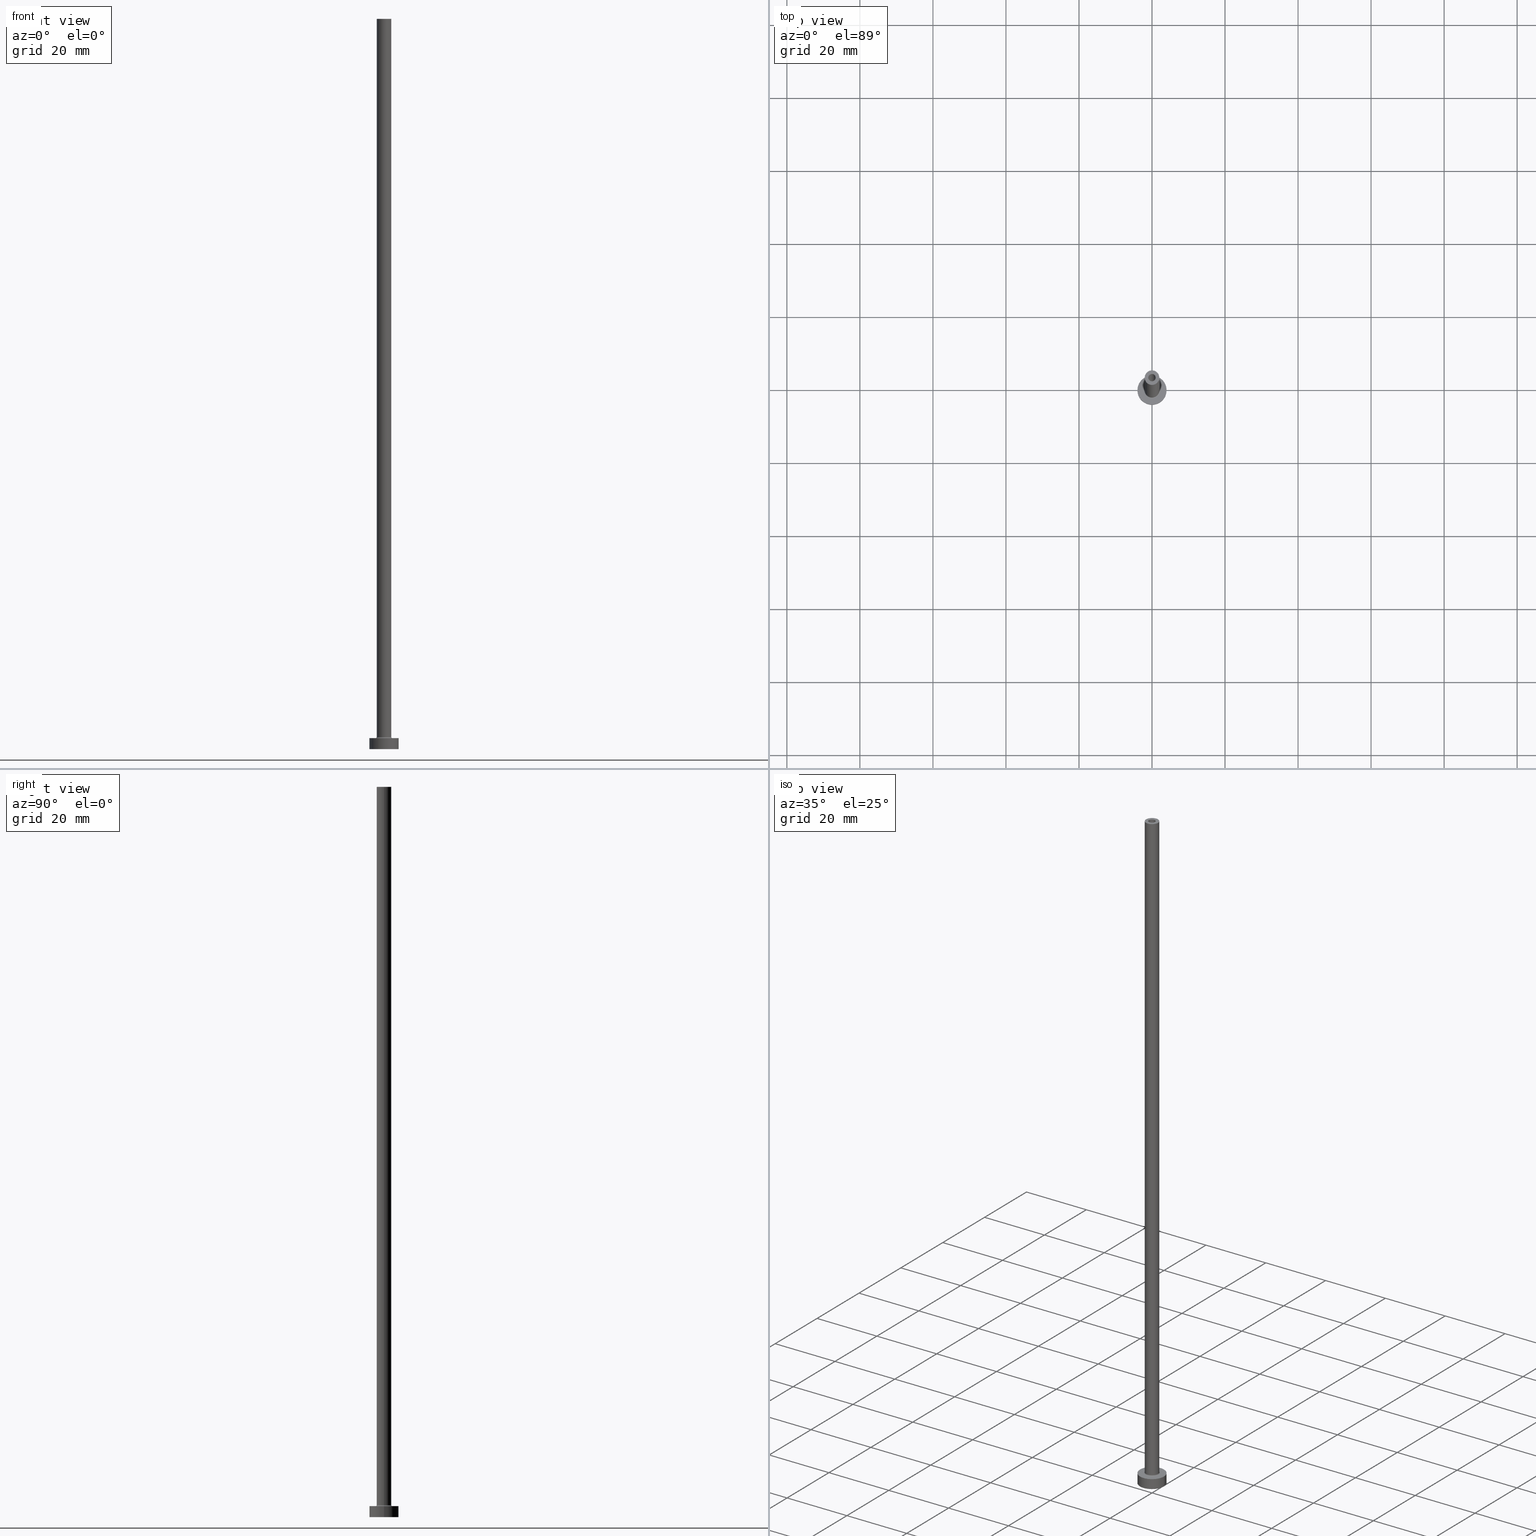
[diagram: canonical four-view strip — front | top / right | iso, engineering-drawing reading convention]
A machine part, canonical four-view strip (front | top / right | iso — engineering-drawing reading convention). The complete STEP part file that produces these views, byte-faithful:
ISO-10303-21;
HEADER;
FILE_DESCRIPTION (( 'STEP AP203' ),
    '1' );
FILE_NAME ('3804.STEP',
    '2023-02-13T18:17:37',
    ( '' ),
    ( '' ),
    'SwSTEP 2.0',
    'SolidWorks 2019',
    '' );
FILE_SCHEMA (( 'CONFIG_CONTROL_DESIGN' ));
ENDSEC;

DATA;
#1 = DIRECTION ( 'NONE',  ( 0.000000000000000000, 0.000000000000000000, -1.000000000000000000 ) ) ;
#2 = AXIS2_PLACEMENT_3D ( 'NONE', #306, #198, #444 ) ;
#3 = VECTOR ( 'NONE', #148, 1000.000000000000000 ) ;
#4 = DIRECTION ( 'NONE',  ( 1.000000000000000000, 0.000000000000000000, 0.000000000000000000 ) ) ;
#5 = ORIENTED_EDGE ( 'NONE', *, *, #327, .T. ) ;
#6 = DIRECTION ( 'NONE',  ( -0.000000000000000000, -0.000000000000000000, -1.000000000000000000 ) ) ;
#7 = ADVANCED_FACE ( 'NONE', ( #129 ), #270, .F. ) ;
#8 = DIRECTION ( 'NONE',  ( 0.000000000000000000, 0.000000000000000000, 1.000000000000000000 ) ) ;
#9 = ORIENTED_EDGE ( 'NONE', *, *, #277, .F. ) ;
#10 = CC_DESIGN_APPROVAL ( #256, ( #58 ) ) ;
#11 = ORIENTED_EDGE ( 'NONE', *, *, #242, .T. ) ;
#12 = AXIS2_PLACEMENT_3D ( 'NONE', #363, #8, #437 ) ;
#13 = VERTEX_POINT ( 'NONE', #123 ) ;
#14 = VERTEX_POINT ( 'NONE', #365 ) ;
#15 = ORIENTED_EDGE ( 'NONE', *, *, #335, .T. ) ;
#16 = TOROIDAL_SURFACE ( 'NONE', #66, 2.299999999999999822, 0.2999999999999999889 ) ;
#17 = EDGE_CURVE ( 'NONE', #162, #216, #131, .T. ) ;
#18 = ORIENTED_EDGE ( 'NONE', *, *, #17, .T. ) ;
#19 = DIRECTION ( 'NONE',  ( 0.000000000000000000, 0.000000000000000000, 1.000000000000000000 ) ) ;
#20 = PERSON_AND_ORGANIZATION ( #426, #276 ) ;
#21 = CARTESIAN_POINT ( 'NONE',  ( 0.000000000000000000, 0.000000000000000000, 3.000000000000000000 ) ) ;
#22 = CARTESIAN_POINT ( 'NONE',  ( 0.000000000000000000, 0.000000000000000000, 200.0000000000000000 ) ) ;
#23 = DATE_TIME_ROLE ( 'creation_date' ) ;
#24 = ADVANCED_FACE ( 'NONE', ( #436 ), #346, .T. ) ;
#25 = AXIS2_PLACEMENT_3D ( 'NONE', #238, #373, #170 ) ;
#26 = CALENDAR_DATE ( 2023, 13, 2 ) ;
#27 = DIRECTION ( 'NONE',  ( 1.000000000000000000, 0.000000000000000000, -0.000000000000000000 ) ) ;
#28 = ADVANCED_FACE ( 'NONE', ( #175 ), #332, .T. ) ;
#29 = PLANE ( 'NONE',  #266 ) ;
#30 = CIRCLE ( 'NONE', #345, 1.149999999999999911 ) ;
#31 = CARTESIAN_POINT ( 'NONE',  ( 2.299999999999999822, 0.000000000000000000, 2.999999999999998668 ) ) ;
#32 = EDGE_LOOP ( 'NONE', ( #368, #322 ) ) ;
#33 = DIRECTION ( 'NONE',  ( 0.000000000000000000, 0.000000000000000000, 1.000000000000000000 ) ) ;
#34 = CARTESIAN_POINT ( 'NONE',  ( 0.000000000000000000, 0.000000000000000000, 3.000000000000000000 ) ) ;
#35 = VERTEX_POINT ( 'NONE', #119 ) ;
#36 = CARTESIAN_POINT ( 'NONE',  ( 0.000000000000000000, 0.000000000000000000, 168.2526911934581335 ) ) ;
#37 = APPROVAL ( #369, 'NEUR�EN�' ) ;
#38 = AXIS2_PLACEMENT_3D ( 'NONE', #387, #422, #383 ) ;
#39 = DIRECTION ( 'NONE',  ( 1.000000000000000000, 0.000000000000000000, 0.000000000000000000 ) ) ;
#40 = DIRECTION ( 'NONE',  ( -1.000000000000000000, 0.000000000000000000, 0.000000000000000000 ) ) ;
#41 = DIRECTION ( 'NONE',  ( 1.000000000000000000, 0.000000000000000000, 0.000000000000000000 ) ) ;
#42 = CARTESIAN_POINT ( 'NONE',  ( 0.000000000000000000, 0.000000000000000000, 200.0000000000000000 ) ) ;
#43 = EDGE_CURVE ( 'NONE', #265, #381, #122, .T. ) ;
#44 = CARTESIAN_POINT ( 'NONE',  ( 0.000000000000000000, 0.000000000000000000, 200.0000000000000000 ) ) ;
#45 =( LENGTH_UNIT ( ) NAMED_UNIT ( * ) SI_UNIT ( .MILLI., .METRE. ) );
#46 = CIRCLE ( 'NONE', #417, 1.149999999999999911 ) ;
#47 = APPROVAL_PERSON_ORGANIZATION ( #164, #37, #303 ) ;
#48 = EDGE_LOOP ( 'NONE', ( #185, #231, #405, #319 ) ) ;
#49 = DIRECTION ( 'NONE',  ( 0.000000000000000000, 0.000000000000000000, 1.000000000000000000 ) ) ;
#50 = CIRCLE ( 'NONE', #217, 2.299999999999999822 ) ;
#51 =( NAMED_UNIT ( * ) SI_UNIT ( $, .STERADIAN. ) SOLID_ANGLE_UNIT ( ) );
#52 = CARTESIAN_POINT ( 'NONE',  ( 2.000000000000000000, 2.449293598294706414E-16, 200.0000000000000000 ) ) ;
#53 = EDGE_CURVE ( 'NONE', #13, #350, #262, .T. ) ;
#54 = DIRECTION ( 'NONE',  ( 1.000000000000000000, 0.000000000000000000, 0.000000000000000000 ) ) ;
#55 = APPROVAL_DATE_TIME ( #97, #251 ) ;
#56 = LINE ( 'NONE', #52, #309 ) ;
#57 = AXIS2_PLACEMENT_3D ( 'NONE', #313, #458, #138 ) ;
#58 = SECURITY_CLASSIFICATION ( '', '', #410 ) ;
#59 = DIRECTION ( 'NONE',  ( -0.000000000000000000, -0.000000000000000000, -1.000000000000000000 ) ) ;
#60 = DIRECTION ( 'NONE',  ( -0.000000000000000000, -0.000000000000000000, -1.000000000000000000 ) ) ;
#61 = EDGE_CURVE ( 'NONE', #457, #353, #95, .T. ) ;
#62 = CARTESIAN_POINT ( 'NONE',  ( 0.000000000000000000, 0.000000000000000000, 165.0000000000000000 ) ) ;
#63 = FACE_OUTER_BOUND ( 'NONE', #406, .T. ) ;
#64 = CARTESIAN_POINT ( 'NONE',  ( -1.149999999999999911, 0.000000000000000000, 165.0000000000000000 ) ) ;
#65 = CARTESIAN_POINT ( 'NONE',  ( 0.000000000000000000, 0.000000000000000000, 0.000000000000000000 ) ) ;
#66 = AXIS2_PLACEMENT_3D ( 'NONE', #285, #409, #54 ) ;
#67 = APPROVAL_PERSON_ORGANIZATION ( #88, #256, #453 ) ;
#68 = DIRECTION ( 'NONE',  ( 1.000000000000000000, 0.000000000000000000, 0.000000000000000000 ) ) ;
#69 = EDGE_CURVE ( 'NONE', #35, #160, #323, .T. ) ;
#70 = ORIENTED_EDGE ( 'NONE', *, *, #195, .F. ) ;
#71 = AXIS2_PLACEMENT_3D ( 'NONE', #324, #189, #4 ) ;
#72 = AXIS2_PLACEMENT_3D ( 'NONE', #103, #33, #320 ) ;
#73 = CC_DESIGN_APPROVAL ( #251, ( #429 ) ) ;
#74 = ORIENTED_EDGE ( 'NONE', *, *, #412, .F. ) ;
#75 = ORIENTED_EDGE ( 'NONE', *, *, #130, .T. ) ;
#76 = CALENDAR_DATE ( 2023, 13, 2 ) ;
#77 = VERTEX_POINT ( 'NONE', #298 ) ;
#78 = AXIS2_PLACEMENT_3D ( 'NONE', #44, #461, #110 ) ;
#79 = ORIENTED_EDGE ( 'NONE', *, *, #69, .F. ) ;
#80 = PERSON_AND_ORGANIZATION ( #426, #276 ) ;
#81 = ORIENTED_EDGE ( 'NONE', *, *, #106, .T. ) ;
#82 = EDGE_CURVE ( 'NONE', #160, #35, #244, .T. ) ;
#83 = CARTESIAN_POINT ( 'NONE',  ( 2.000000000000000000, 2.449293598294706414E-16, 200.0000000000000000 ) ) ;
#84 = DIRECTION ( 'NONE',  ( 1.000000000000000000, 0.000000000000000000, 0.000000000000000000 ) ) ;
#85 = CLOSED_SHELL ( 'NONE', ( #7, #308, #236, #28, #118, #24, #321, #286, #268, #401, #202, #207, #347, #90 ) ) ;
#86 = EDGE_LOOP ( 'NONE', ( #121, #201, #451, #5 ) ) ;
#87 = DIRECTION ( 'NONE',  ( 1.000000000000000000, 0.000000000000000000, -0.000000000000000000 ) ) ;
#88 = PERSON_AND_ORGANIZATION ( #426, #276 ) ;
#89 = CIRCLE ( 'NONE', #377, 1.000000000000000000 ) ;
#90 = ADVANCED_FACE ( 'NONE', ( #424 ), #92, .F. ) ;
#91 = DIRECTION ( 'NONE',  ( -0.000000000000000000, -0.000000000000000000, -1.000000000000000000 ) ) ;
#92 = CYLINDRICAL_SURFACE ( 'NONE', #113, 1.000000000000000000 ) ;
#93 = PERSON_AND_ORGANIZATION_ROLE ( 'creator' ) ;
#94 = DATE_AND_TIME ( #26, #108 ) ;
#95 = LINE ( 'NONE', #261, #399 ) ;
#96 = ORIENTED_EDGE ( 'NONE', *, *, #327, .F. ) ;
#97 = DATE_AND_TIME ( #307, #98 ) ;
#98 = LOCAL_TIME ( 19, 17, 37.00000000000000000, #414 ) ;
#99 = DIRECTION ( 'NONE',  ( 0.000000000000000000, 0.000000000000000000, 1.000000000000000000 ) ) ;
#100 = PRODUCT_DEFINITION ( 'NEZN�M�', '', #429, #311 ) ;
#101 = ORIENTED_EDGE ( 'NONE', *, *, #43, .F. ) ;
#102 = EDGE_LOOP ( 'NONE', ( #11, #141 ) ) ;
#103 = CARTESIAN_POINT ( 'NONE',  ( 0.000000000000000000, 0.000000000000000000, 0.000000000000000000 ) ) ;
#104 = DIRECTION ( 'NONE',  ( 1.000000000000000000, 0.000000000000000000, 0.000000000000000000 ) ) ;
#105 = DIRECTION ( 'NONE',  ( -0.000000000000000000, -0.000000000000000000, -1.000000000000000000 ) ) ;
#106 = EDGE_CURVE ( 'NONE', #216, #162, #315, .T. ) ;
#107 = CIRCLE ( 'NONE', #38, 4.000000000000000000 ) ;
#108 = LOCAL_TIME ( 19, 17, 37.00000000000000000, #172 ) ;
#109 = MANIFOLD_SOLID_BREP ( 'Odebrat vysunut�m4', #85 ) ;
#110 = DIRECTION ( 'NONE',  ( -1.000000000000000000, 0.000000000000000000, 0.000000000000000000 ) ) ;
#111 = DIRECTION ( 'NONE',  ( -1.000000000000000000, 0.000000000000000000, 0.000000000000000000 ) ) ;
#112 = CARTESIAN_POINT ( 'NONE',  ( 0.000000000000000000, 0.000000000000000000, 200.0000000000000000 ) ) ;
#113 = AXIS2_PLACEMENT_3D ( 'NONE', #112, #1, #360 ) ;
#114 = ORIENTED_EDGE ( 'NONE', *, *, #293, .F. ) ;
#115 = ORIENTED_EDGE ( 'NONE', *, *, #213, .T. ) ;
#116 = DIRECTION ( 'NONE',  ( 0.000000000000000000, 0.000000000000000000, 1.000000000000000000 ) ) ;
#117 = AXIS2_PLACEMENT_3D ( 'NONE', #386, #151, #295 ) ;
#118 = ADVANCED_FACE ( 'NONE', ( #318 ), #184, .T. ) ;
#119 = CARTESIAN_POINT ( 'NONE',  ( -2.000000000000000000, 0.000000000000000000, 3.299999999999997158 ) ) ;
#120 = ORIENTED_EDGE ( 'NONE', *, *, #183, .T. ) ;
#121 = ORIENTED_EDGE ( 'NONE', *, *, #367, .F. ) ;
#122 = CIRCLE ( 'NONE', #12, 1.000000000000000000 ) ;
#123 = CARTESIAN_POINT ( 'NONE',  ( 1.149999999999999911, 1.408343819019456028E-16, 165.0000000000000000 ) ) ;
#124 = PRODUCT_DEFINITION_SHAPE ( 'NONE', 'NONE',  #100 ) ;
#125 = APPLICATION_PROTOCOL_DEFINITION ( 'international standard', 'config_control_design', 1994, #423 ) ;
#126 = EDGE_CURVE ( 'NONE', #241, #179, #253, .T. ) ;
#127 = AXIS2_PLACEMENT_3D ( 'NONE', #352, #358, #394 ) ;
#128 = DATE_TIME_ROLE ( 'classification_date' ) ;
#129 = FACE_OUTER_BOUND ( 'NONE', #425, .T. ) ;
#130 = EDGE_CURVE ( 'NONE', #353, #350, #46, .T. ) ;
#131 = CIRCLE ( 'NONE', #281, 2.000000000000000000 ) ;
#132 = CARTESIAN_POINT ( 'NONE',  ( 2.299999999999999822, 0.000000000000000000, 3.299999999999997158 ) ) ;
#133 = PERSON_AND_ORGANIZATION ( #426, #276 ) ;
#134 = DATE_AND_TIME ( #375, #435 ) ;
#135 = ORIENTED_EDGE ( 'NONE', *, *, #412, .T. ) ;
#136 = FACE_OUTER_BOUND ( 'NONE', #211, .T. ) ;
#137 = DIRECTION ( 'NONE',  ( -0.000000000000000000, -0.000000000000000000, -1.000000000000000000 ) ) ;
#138 = DIRECTION ( 'NONE',  ( 1.000000000000000000, 0.000000000000000000, 0.000000000000000000 ) ) ;
#139 = CC_DESIGN_PERSON_AND_ORGANIZATION_ASSIGNMENT ( #239, #167, ( #429 ) ) ;
#140 = DIRECTION ( 'NONE',  ( 0.000000000000000000, 0.000000000000000000, -1.000000000000000000 ) ) ;
#141 = ORIENTED_EDGE ( 'NONE', *, *, #304, .T. ) ;
#142 = CIRCLE ( 'NONE', #330, 2.299999999999999822 ) ;
#143 = DIRECTION ( 'NONE',  ( 0.000000000000000000, 0.000000000000000000, 1.000000000000000000 ) ) ;
#144 = PLANE ( 'NONE',  #188 ) ;
#145 = DIRECTION ( 'NONE',  ( 1.000000000000000000, 0.000000000000000000, 0.000000000000000000 ) ) ;
#146 = CARTESIAN_POINT ( 'NONE',  ( 2.000000000000000000, 2.449293598294706414E-16, 3.299999999999997158 ) ) ;
#147 = EDGE_CURVE ( 'NONE', #381, #265, #305, .T. ) ;
#148 = DIRECTION ( 'NONE',  ( -0.000000000000000000, -0.000000000000000000, -1.000000000000000000 ) ) ;
#149 = ORIENTED_EDGE ( 'NONE', *, *, #361, .F. ) ;
#150 = CIRCLE ( 'NONE', #301, 1.000000000000000000 ) ;
#151 = DIRECTION ( 'NONE',  ( 0.000000000000000000, 0.000000000000000000, 1.000000000000000000 ) ) ;
#152 = CARTESIAN_POINT ( 'NONE',  ( 0.000000000000000000, 0.000000000000000000, 165.0000000000000000 ) ) ;
#153 = FACE_OUTER_BOUND ( 'NONE', #271, .T. ) ;
#154 = DIRECTION ( 'NONE',  ( 0.000000000000000000, 0.000000000000000000, 1.000000000000000000 ) ) ;
#155 = DIRECTION ( 'NONE',  ( 1.000000000000000000, 0.000000000000000000, 0.000000000000000000 ) ) ;
#156 = VECTOR ( 'NONE', #59, 1000.000000000000000 ) ;
#157 = LOCAL_TIME ( 19, 17, 37.00000000000000000, #203 ) ;
#158 = VERTEX_POINT ( 'NONE', #31 ) ;
#159 = PRODUCT ( '3804', '3804', '', ( #333 ) ) ;
#160 = VERTEX_POINT ( 'NONE', #146 ) ;
#161 = PRODUCT_RELATED_PRODUCT_CATEGORY ( 'detail', '', ( #159 ) ) ;
#162 = VERTEX_POINT ( 'NONE', #83 ) ;
#163 = ORIENTED_EDGE ( 'NONE', *, *, #147, .T. ) ;
#164 = PERSON_AND_ORGANIZATION ( #426, #276 ) ;
#165 = CARTESIAN_POINT ( 'NONE',  ( -4.000000000000000000, 0.000000000000000000, 3.000000000000000000 ) ) ;
#166 = VERTEX_POINT ( 'NONE', #371 ) ;
#167 = PERSON_AND_ORGANIZATION_ROLE ( 'design_supplier' ) ;
#168 = CARTESIAN_POINT ( 'NONE',  ( 0.000000000000000000, 0.000000000000000000, 0.000000000000000000 ) ) ;
#169 = DIRECTION ( 'NONE',  ( 0.000000000000000000, 0.000000000000000000, 1.000000000000000000 ) ) ;
#170 = DIRECTION ( 'NONE',  ( -1.000000000000000000, 0.000000000000000000, 0.000000000000000000 ) ) ;
#171 = EDGE_LOOP ( 'NONE', ( #177, #233 ) ) ;
#172 = COORDINATED_UNIVERSAL_TIME_OFFSET ( 1, 0, .AHEAD. ) ;
#173 = APPROVAL_STATUS ( 'not_yet_approved' ) ;
#174 = DIRECTION ( 'NONE',  ( 1.000000000000000000, 0.000000000000000000, -0.000000000000000000 ) ) ;
#175 = FACE_OUTER_BOUND ( 'NONE', #255, .T. ) ;
#176 = LINE ( 'NONE', #376, #156 ) ;
#177 = ORIENTED_EDGE ( 'NONE', *, *, #226, .T. ) ;
#178 = CARTESIAN_POINT ( 'NONE',  ( -1.000000000000000000, 0.000000000000000000, 200.0000000000000000 ) ) ;
#179 = VERTEX_POINT ( 'NONE', #165 ) ;
#180 = CARTESIAN_POINT ( 'NONE',  ( 4.000000000000000000, 4.898587196589412829E-16, 0.000000000000000000 ) ) ;
#181 =( GEOMETRIC_REPRESENTATION_CONTEXT ( 3 ) GLOBAL_UNCERTAINTY_ASSIGNED_CONTEXT ( ( #287 ) ) GLOBAL_UNIT_ASSIGNED_CONTEXT ( ( #45, #415, #51 ) ) REPRESENTATION_CONTEXT ( 'NONE', 'WORKASPACE' ) );
#182 = CARTESIAN_POINT ( 'NONE',  ( 0.000000000000000000, 0.000000000000000000, 3.000000000000000000 ) ) ;
#183 = EDGE_CURVE ( 'NONE', #35, #404, #408, .T. ) ;
#184 = CYLINDRICAL_SURFACE ( 'NONE', #325, 4.000000000000000000 ) ;
#185 = ORIENTED_EDGE ( 'NONE', *, *, #183, .F. ) ;
#186 = DIRECTION ( 'NONE',  ( 0.000000000000000000, 0.000000000000000000, -1.000000000000000000 ) ) ;
#187 = DIRECTION ( 'NONE',  ( 0.000000000000000000, 0.000000000000000000, -1.000000000000000000 ) ) ;
#188 = AXIS2_PLACEMENT_3D ( 'NONE', #182, #143, #174 ) ;
#189 = DIRECTION ( 'NONE',  ( 0.000000000000000000, 0.000000000000000000, 1.000000000000000000 ) ) ;
#190 = CC_DESIGN_DATE_AND_TIME_ASSIGNMENT ( #94, #128, ( #58 ) ) ;
#191 = ORIENTED_EDGE ( 'NONE', *, *, #213, .F. ) ;
#192 = EDGE_LOOP ( 'NONE', ( #9, #289, #380, #390 ) ) ;
#193 = AXIS2_PLACEMENT_3D ( 'NONE', #21, #91, #240 ) ;
#194 = DIRECTION ( 'NONE',  ( 1.000000000000000000, 0.000000000000000000, 0.000000000000000000 ) ) ;
#195 = EDGE_CURVE ( 'NONE', #216, #35, #328, .T. ) ;
#196 = ORIENTED_EDGE ( 'NONE', *, *, #53, .F. ) ;
#197 = ORIENTED_EDGE ( 'NONE', *, *, #69, .T. ) ;
#198 = DIRECTION ( 'NONE',  ( 1.224646799147353207E-16, 1.000000000000000000, -0.000000000000000000 ) ) ;
#199 = DIRECTION ( 'NONE',  ( -1.000000000000000000, 0.000000000000000000, 0.000000000000000000 ) ) ;
#200 = VECTOR ( 'NONE', #140, 1000.000000000000000 ) ;
#201 = ORIENTED_EDGE ( 'NONE', *, *, #226, .F. ) ;
#202 = ADVANCED_FACE ( 'NONE', ( #411 ), #16, .F. ) ;
#203 = COORDINATED_UNIVERSAL_TIME_OFFSET ( 1, 0, .AHEAD. ) ;
#204 = COORDINATED_UNIVERSAL_TIME_OFFSET ( 1, 0, .AHEAD. ) ;
#205 = PERSON_AND_ORGANIZATION ( #426, #276 ) ;
#206 = AXIS2_PLACEMENT_3D ( 'NONE', #42, #6, #40 ) ;
#207 = ADVANCED_FACE ( 'NONE', ( #446 ), #378, .F. ) ;
#208 = AXIS2_PLACEMENT_3D ( 'NONE', #65, #214, #284 ) ;
#209 = AXIS2_PLACEMENT_3D ( 'NONE', #132, #278, #294 ) ;
#210 = PLANE ( 'NONE',  #317 ) ;
#211 = EDGE_LOOP ( 'NONE', ( #81, #18 ) ) ;
#212 = EDGE_LOOP ( 'NONE', ( #263, #312, #15, #302 ) ) ;
#213 = EDGE_CURVE ( 'NONE', #162, #160, #56, .T. ) ;
#214 = DIRECTION ( 'NONE',  ( 0.000000000000000000, 0.000000000000000000, 1.000000000000000000 ) ) ;
#215 = DIRECTION ( 'NONE',  ( -0.000000000000000000, -0.000000000000000000, -1.000000000000000000 ) ) ;
#216 = VERTEX_POINT ( 'NONE', #259 ) ;
#217 = AXIS2_PLACEMENT_3D ( 'NONE', #34, #362, #427 ) ;
#218 = DIRECTION ( 'NONE',  ( 1.000000000000000000, 0.000000000000000000, 0.000000000000000000 ) ) ;
#219 = ORIENTED_EDGE ( 'NONE', *, *, #421, .F. ) ;
#220 = CARTESIAN_POINT ( 'NONE',  ( 0.000000000000000000, 0.000000000000000000, 3.000000000000000000 ) ) ;
#221 = CC_DESIGN_PERSON_AND_ORGANIZATION_ASSIGNMENT ( #80, #336, ( #159 ) ) ;
#222 = EDGE_LOOP ( 'NONE', ( #96, #114 ) ) ;
#223 = AXIS2_PLACEMENT_3D ( 'NONE', #250, #154, #41 ) ;
#224 = EDGE_LOOP ( 'NONE', ( #196, #419, #356, #75 ) ) ;
#225 = DIRECTION ( 'NONE',  ( 0.000000000000000000, 0.000000000000000000, 1.000000000000000000 ) ) ;
#226 = EDGE_CURVE ( 'NONE', #179, #241, #107, .T. ) ;
#227 = AXIS2_PLACEMENT_3D ( 'NONE', #292, #116, #155 ) ;
#228 = DIRECTION ( 'NONE',  ( 0.000000000000000000, 0.000000000000000000, -1.000000000000000000 ) ) ;
#229 = APPROVAL_DATE_TIME ( #264, #37 ) ;
#230 = CC_DESIGN_SECURITY_CLASSIFICATION ( #58, ( #429 ) ) ;
#231 = ORIENTED_EDGE ( 'NONE', *, *, #82, .F. ) ;
#232 = APPLICATION_PROTOCOL_DEFINITION ( 'international standard', 'config_control_design', 1994, #448 ) ;
#233 = ORIENTED_EDGE ( 'NONE', *, *, #126, .T. ) ;
#234 = ORIENTED_EDGE ( 'NONE', *, *, #438, .F. ) ;
#235 = CARTESIAN_POINT ( 'NONE',  ( 0.000000000000000000, 0.000000000000000000, 3.000000000000000000 ) ) ;
#236 = ADVANCED_FACE ( 'NONE', ( #63 ), #459, .F. ) ;
#237 = ORIENTED_EDGE ( 'NONE', *, *, #367, .T. ) ;
#238 = CARTESIAN_POINT ( 'NONE',  ( 0.000000000000000000, 0.000000000000000000, 168.2526911934581335 ) ) ;
#239 = PERSON_AND_ORGANIZATION ( #426, #276 ) ;
#240 = DIRECTION ( 'NONE',  ( -1.000000000000000000, 0.000000000000000000, 0.000000000000000000 ) ) ;
#241 = VERTEX_POINT ( 'NONE', #243 ) ;
#242 = EDGE_CURVE ( 'NONE', #158, #404, #142, .T. ) ;
#243 = CARTESIAN_POINT ( 'NONE',  ( 4.000000000000000000, 4.898587196589412829E-16, 3.000000000000000000 ) ) ;
#244 = CIRCLE ( 'NONE', #440, 2.000000000000000000 ) ;
#245 = ORIENTED_EDGE ( 'NONE', *, *, #293, .T. ) ;
#246 = FACE_BOUND ( 'NONE', #282, .T. ) ;
#247 = EDGE_LOOP ( 'NONE', ( #370, #237, #245, #234 ) ) ;
#248 = APPROVAL_PERSON_ORGANIZATION ( #274, #251, #379 ) ;
#249 = FACE_BOUND ( 'NONE', #433, .T. ) ;
#250 = CARTESIAN_POINT ( 'NONE',  ( 0.000000000000000000, 0.000000000000000000, 200.0000000000000000 ) ) ;
#251 = APPROVAL ( #344, 'NEUR�EN�' ) ;
#252 = CARTESIAN_POINT ( 'NONE',  ( 1.149999999999999911, 1.408343819019456028E-16, 0.000000000000000000 ) ) ;
#253 = CIRCLE ( 'NONE', #117, 4.000000000000000000 ) ;
#254 = DIRECTION ( 'NONE',  ( 0.000000000000000000, 0.000000000000000000, -1.000000000000000000 ) ) ;
#255 = EDGE_LOOP ( 'NONE', ( #403, #115, #398, #70 ) ) ;
#256 = APPROVAL ( #173, 'NEUR�EN�' ) ;
#257 = CYLINDRICAL_SURFACE ( 'NONE', #428, 1.149999999999999911 ) ;
#258 = PLANE ( 'NONE',  #72 ) ;
#259 = CARTESIAN_POINT ( 'NONE',  ( -2.000000000000000000, 0.000000000000000000, 200.0000000000000000 ) ) ;
#260 = AXIS2_PLACEMENT_3D ( 'NONE', #279, #267, #272 ) ;
#261 = CARTESIAN_POINT ( 'NONE',  ( -1.149999999999999911, 0.000000000000000000, 168.2526911934581335 ) ) ;
#262 = LINE ( 'NONE', #357, #374 ) ;
#263 = ORIENTED_EDGE ( 'NONE', *, *, #299, .T. ) ;
#264 = DATE_AND_TIME ( #76, #283 ) ;
#265 = VERTEX_POINT ( 'NONE', #355 ) ;
#266 = AXIS2_PLACEMENT_3D ( 'NONE', #62, #280, #27 ) ;
#267 = DIRECTION ( 'NONE',  ( 0.000000000000000000, 0.000000000000000000, 1.000000000000000000 ) ) ;
#268 = ADVANCED_FACE ( 'NONE', ( #153 ), #395, .T. ) ;
#269 = CARTESIAN_POINT ( 'NONE',  ( 0.000000000000000000, 0.000000000000000000, 200.0000000000000000 ) ) ;
#270 = CYLINDRICAL_SURFACE ( 'NONE', #291, 1.000000000000000000 ) ;
#271 = EDGE_LOOP ( 'NONE', ( #191, #343, #393, #197 ) ) ;
#272 = DIRECTION ( 'NONE',  ( 1.000000000000000000, 0.000000000000000000, 0.000000000000000000 ) ) ;
#273 = CARTESIAN_POINT ( 'NONE',  ( -2.000000000000000000, 0.000000000000000000, 200.0000000000000000 ) ) ;
#274 = PERSON_AND_ORGANIZATION ( #426, #276 ) ;
#275 = VECTOR ( 'NONE', #254, 1000.000000000000000 ) ;
#276 = ORGANIZATION ( 'NEUR�EN�', 'NEUR�EN�', '' ) ;
#277 = EDGE_CURVE ( 'NONE', #14, #381, #326, .T. ) ;
#278 = DIRECTION ( 'NONE',  ( 0.000000000000000000, -1.000000000000000000, 0.000000000000000000 ) ) ;
#279 = CARTESIAN_POINT ( 'NONE',  ( 0.000000000000000000, 0.000000000000000000, 3.299999999999997158 ) ) ;
#280 = DIRECTION ( 'NONE',  ( 0.000000000000000000, 0.000000000000000000, 1.000000000000000000 ) ) ;
#281 = AXIS2_PLACEMENT_3D ( 'NONE', #334, #49, #288 ) ;
#282 = EDGE_LOOP ( 'NONE', ( #74, #329 ) ) ;
#283 = LOCAL_TIME ( 19, 17, 37.00000000000000000, #442 ) ;
#284 = DIRECTION ( 'NONE',  ( 1.000000000000000000, 0.000000000000000000, 0.000000000000000000 ) ) ;
#285 = CARTESIAN_POINT ( 'NONE',  ( 0.000000000000000000, 0.000000000000000000, 3.299999999999997158 ) ) ;
#286 = ADVANCED_FACE ( 'NONE', ( #296, #431 ), #258, .F. ) ;
#287 = UNCERTAINTY_MEASURE_WITH_UNIT (LENGTH_MEASURE( 1.000000000000000082E-05 ), #45, 'distance_accuracy_value', 'NONE');
#288 = DIRECTION ( 'NONE',  ( 1.000000000000000000, 0.000000000000000000, 0.000000000000000000 ) ) ;
#289 = ORIENTED_EDGE ( 'NONE', *, *, #384, .T. ) ;
#290 = EDGE_LOOP ( 'NONE', ( #402, #351 ) ) ;
#291 = AXIS2_PLACEMENT_3D ( 'NONE', #269, #228, #199 ) ;
#292 = CARTESIAN_POINT ( 'NONE',  ( 0.000000000000000000, 0.000000000000000000, 0.000000000000000000 ) ) ;
#293 = EDGE_CURVE ( 'NONE', #455, #77, #434, .T. ) ;
#294 = DIRECTION ( 'NONE',  ( 0.000000000000000000, 0.000000000000000000, -1.000000000000000000 ) ) ;
#295 = DIRECTION ( 'NONE',  ( 1.000000000000000000, 0.000000000000000000, 0.000000000000000000 ) ) ;
#296 = FACE_BOUND ( 'NONE', #290, .T. ) ;
#297 = CARTESIAN_POINT ( 'NONE',  ( 0.000000000000000000, 0.000000000000000000, 0.000000000000000000 ) ) ;
#298 = CARTESIAN_POINT ( 'NONE',  ( -4.000000000000000000, 0.000000000000000000, 0.000000000000000000 ) ) ;
#299 = EDGE_CURVE ( 'NONE', #457, #13, #337, .T. ) ;
#300 = DIRECTION ( 'NONE',  ( 1.000000000000000000, 0.000000000000000000, 0.000000000000000000 ) ) ;
#301 = AXIS2_PLACEMENT_3D ( 'NONE', #416, #99, #145 ) ;
#302 = ORIENTED_EDGE ( 'NONE', *, *, #61, .F. ) ;
#303 = APPROVAL_ROLE ( '' ) ;
#304 = EDGE_CURVE ( 'NONE', #404, #158, #50, .T. ) ;
#305 = CIRCLE ( 'NONE', #127, 1.000000000000000000 ) ;
#306 = CARTESIAN_POINT ( 'NONE',  ( -2.299999999999999822, 2.816687638038912056E-16, 3.299999999999997158 ) ) ;
#307 = CALENDAR_DATE ( 2023, 13, 2 ) ;
#308 = ADVANCED_FACE ( 'NONE', ( #354 ), #257, .F. ) ;
#309 = VECTOR ( 'NONE', #460, 1000.000000000000000 ) ;
#310 = CC_DESIGN_APPROVAL ( #37, ( #100 ) ) ;
#311 = DESIGN_CONTEXT ( 'detailed design', #448, 'design' ) ;
#312 = ORIENTED_EDGE ( 'NONE', *, *, #53, .T. ) ;
#313 = CARTESIAN_POINT ( 'NONE',  ( 0.000000000000000000, 0.000000000000000000, 165.0000000000000000 ) ) ;
#314 = CARTESIAN_POINT ( 'NONE',  ( 1.000000000000000000, 1.224646799147353207E-16, 165.0000000000000000 ) ) ;
#315 = CIRCLE ( 'NONE', #223, 2.000000000000000000 ) ;
#316 = CC_DESIGN_PERSON_AND_ORGANIZATION_ASSIGNMENT ( #205, #342, ( #58 ) ) ;
#317 = AXIS2_PLACEMENT_3D ( 'NONE', #338, #19, #87 ) ;
#318 = FACE_OUTER_BOUND ( 'NONE', #247, .T. ) ;
#319 = ORIENTED_EDGE ( 'NONE', *, *, #304, .F. ) ;
#320 = DIRECTION ( 'NONE',  ( 1.000000000000000000, 0.000000000000000000, -0.000000000000000000 ) ) ;
#321 = ADVANCED_FACE ( 'NONE', ( #359, #331 ), #144, .T. ) ;
#322 = ORIENTED_EDGE ( 'NONE', *, *, #454, .F. ) ;
#323 = CIRCLE ( 'NONE', #71, 2.000000000000000000 ) ;
#324 = CARTESIAN_POINT ( 'NONE',  ( 0.000000000000000000, 0.000000000000000000, 3.299999999999997158 ) ) ;
#325 = AXIS2_PLACEMENT_3D ( 'NONE', #220, #105, #392 ) ;
#326 = LINE ( 'NONE', #389, #275 ) ;
#327 = EDGE_CURVE ( 'NONE', #77, #455, #366, .T. ) ;
#328 = LINE ( 'NONE', #273, #450 ) ;
#329 = ORIENTED_EDGE ( 'NONE', *, *, #384, .F. ) ;
#330 = AXIS2_PLACEMENT_3D ( 'NONE', #235, #391, #300 ) ;
#331 = FACE_OUTER_BOUND ( 'NONE', #171, .T. ) ;
#332 = CYLINDRICAL_SURFACE ( 'NONE', #206, 2.000000000000000000 ) ;
#333 = MECHANICAL_CONTEXT ( 'NONE', #423, 'mechanical' ) ;
#334 = CARTESIAN_POINT ( 'NONE',  ( 0.000000000000000000, 0.000000000000000000, 200.0000000000000000 ) ) ;
#335 = EDGE_CURVE ( 'NONE', #350, #353, #30, .T. ) ;
#336 = PERSON_AND_ORGANIZATION_ROLE ( 'design_owner' ) ;
#337 = CIRCLE ( 'NONE', #397, 1.149999999999999911 ) ;
#338 = CARTESIAN_POINT ( 'NONE',  ( 0.000000000000000000, 0.000000000000000000, 200.0000000000000000 ) ) ;
#339 = AXIS2_PLACEMENT_3D ( 'NONE', #168, #364, #194 ) ;
#340 = DATE_AND_TIME ( #452, #157 ) ;
#341 = CARTESIAN_POINT ( 'NONE',  ( -2.299999999999999822, 2.816687638038912056E-16, 2.999999999999998668 ) ) ;
#342 = PERSON_AND_ORGANIZATION_ROLE ( 'classification_officer' ) ;
#343 = ORIENTED_EDGE ( 'NONE', *, *, #106, .F. ) ;
#344 = APPROVAL_STATUS ( 'not_yet_approved' ) ;
#345 = AXIS2_PLACEMENT_3D ( 'NONE', #348, #137, #104 ) ;
#346 = CYLINDRICAL_SURFACE ( 'NONE', #193, 4.000000000000000000 ) ;
#347 = ADVANCED_FACE ( 'NONE', ( #249, #382 ), #29, .F. ) ;
#348 = CARTESIAN_POINT ( 'NONE',  ( 0.000000000000000000, 0.000000000000000000, 0.000000000000000000 ) ) ;
#349 = CIRCLE ( 'NONE', #209, 0.2999999999999999334 ) ;
#350 = VERTEX_POINT ( 'NONE', #252 ) ;
#351 = ORIENTED_EDGE ( 'NONE', *, *, #335, .F. ) ;
#352 = CARTESIAN_POINT ( 'NONE',  ( 0.000000000000000000, 0.000000000000000000, 165.0000000000000000 ) ) ;
#353 = VERTEX_POINT ( 'NONE', #420 ) ;
#354 = FACE_OUTER_BOUND ( 'NONE', #212, .T. ) ;
#355 = CARTESIAN_POINT ( 'NONE',  ( -1.000000000000000000, 0.000000000000000000, 165.0000000000000000 ) ) ;
#356 = ORIENTED_EDGE ( 'NONE', *, *, #61, .T. ) ;
#357 = CARTESIAN_POINT ( 'NONE',  ( 1.149999999999999911, 1.408343819019456028E-16, 168.2526911934581335 ) ) ;
#358 = DIRECTION ( 'NONE',  ( 0.000000000000000000, 0.000000000000000000, 1.000000000000000000 ) ) ;
#359 = FACE_BOUND ( 'NONE', #102, .T. ) ;
#360 = DIRECTION ( 'NONE',  ( -1.000000000000000000, 0.000000000000000000, 0.000000000000000000 ) ) ;
#361 = EDGE_CURVE ( 'NONE', #166, #265, #413, .T. ) ;
#362 = DIRECTION ( 'NONE',  ( -0.000000000000000000, -0.000000000000000000, -1.000000000000000000 ) ) ;
#363 = CARTESIAN_POINT ( 'NONE',  ( 0.000000000000000000, 0.000000000000000000, 165.0000000000000000 ) ) ;
#364 = DIRECTION ( 'NONE',  ( 0.000000000000000000, 0.000000000000000000, 1.000000000000000000 ) ) ;
#365 = CARTESIAN_POINT ( 'NONE',  ( 1.000000000000000000, 1.224646799147353207E-16, 200.0000000000000000 ) ) ;
#366 = CIRCLE ( 'NONE', #208, 4.000000000000000000 ) ;
#367 = EDGE_CURVE ( 'NONE', #241, #455, #176, .T. ) ;
#368 = ORIENTED_EDGE ( 'NONE', *, *, #299, .F. ) ;
#369 = APPROVAL_STATUS ( 'not_yet_approved' ) ;
#370 = ORIENTED_EDGE ( 'NONE', *, *, #126, .F. ) ;
#371 = CARTESIAN_POINT ( 'NONE',  ( -1.000000000000000000, 0.000000000000000000, 200.0000000000000000 ) ) ;
#372 = APPROVAL_DATE_TIME ( #134, #256 ) ;
#373 = DIRECTION ( 'NONE',  ( 0.000000000000000000, 0.000000000000000000, -1.000000000000000000 ) ) ;
#374 = VECTOR ( 'NONE', #187, 1000.000000000000000 ) ;
#375 = CALENDAR_DATE ( 2023, 13, 2 ) ;
#376 = CARTESIAN_POINT ( 'NONE',  ( 4.000000000000000000, 4.898587196589412829E-16, 3.000000000000000000 ) ) ;
#377 = AXIS2_PLACEMENT_3D ( 'NONE', #22, #169, #84 ) ;
#378 = CYLINDRICAL_SURFACE ( 'NONE', #25, 1.149999999999999911 ) ;
#379 = APPROVAL_ROLE ( '' ) ;
#380 = ORIENTED_EDGE ( 'NONE', *, *, #361, .T. ) ;
#381 = VERTEX_POINT ( 'NONE', #314 ) ;
#382 = FACE_OUTER_BOUND ( 'NONE', #32, .T. ) ;
#383 = DIRECTION ( 'NONE',  ( 1.000000000000000000, 0.000000000000000000, 0.000000000000000000 ) ) ;
#384 = EDGE_CURVE ( 'NONE', #14, #166, #150, .T. ) ;
#385 = LINE ( 'NONE', #388, #3 ) ;
#386 = CARTESIAN_POINT ( 'NONE',  ( 0.000000000000000000, 0.000000000000000000, 3.000000000000000000 ) ) ;
#387 = CARTESIAN_POINT ( 'NONE',  ( 0.000000000000000000, 0.000000000000000000, 3.000000000000000000 ) ) ;
#388 = CARTESIAN_POINT ( 'NONE',  ( -4.000000000000000000, 0.000000000000000000, 3.000000000000000000 ) ) ;
#389 = CARTESIAN_POINT ( 'NONE',  ( 1.000000000000000000, 1.224646799147353207E-16, 200.0000000000000000 ) ) ;
#390 = ORIENTED_EDGE ( 'NONE', *, *, #147, .F. ) ;
#391 = DIRECTION ( 'NONE',  ( -0.000000000000000000, -0.000000000000000000, -1.000000000000000000 ) ) ;
#392 = DIRECTION ( 'NONE',  ( -1.000000000000000000, 0.000000000000000000, 0.000000000000000000 ) ) ;
#393 = ORIENTED_EDGE ( 'NONE', *, *, #195, .T. ) ;
#394 = DIRECTION ( 'NONE',  ( 1.000000000000000000, 0.000000000000000000, 0.000000000000000000 ) ) ;
#395 = CYLINDRICAL_SURFACE ( 'NONE', #78, 2.000000000000000000 ) ;
#396 = CC_DESIGN_PERSON_AND_ORGANIZATION_ASSIGNMENT ( #20, #93, ( #100 ) ) ;
#397 = AXIS2_PLACEMENT_3D ( 'NONE', #152, #225, #68 ) ;
#398 = ORIENTED_EDGE ( 'NONE', *, *, #82, .T. ) ;
#399 = VECTOR ( 'NONE', #186, 1000.000000000000000 ) ;
#400 = ORIENTED_EDGE ( 'NONE', *, *, #242, .F. ) ;
#401 = ADVANCED_FACE ( 'NONE', ( #246, #136 ), #210, .T. ) ;
#402 = ORIENTED_EDGE ( 'NONE', *, *, #130, .F. ) ;
#403 = ORIENTED_EDGE ( 'NONE', *, *, #17, .F. ) ;
#404 = VERTEX_POINT ( 'NONE', #341 ) ;
#405 = ORIENTED_EDGE ( 'NONE', *, *, #421, .T. ) ;
#406 = EDGE_LOOP ( 'NONE', ( #79, #120, #400, #219 ) ) ;
#407 = CC_DESIGN_DATE_AND_TIME_ASSIGNMENT ( #340, #23, ( #100 ) ) ;
#408 = CIRCLE ( 'NONE', #2, 0.2999999999999999334 ) ;
#409 = DIRECTION ( 'NONE',  ( 0.000000000000000000, 0.000000000000000000, 1.000000000000000000 ) ) ;
#410 = SECURITY_CLASSIFICATION_LEVEL ( 'unclassified' ) ;
#411 = FACE_OUTER_BOUND ( 'NONE', #48, .T. ) ;
#412 = EDGE_CURVE ( 'NONE', #166, #14, #89, .T. ) ;
#413 = LINE ( 'NONE', #178, #200 ) ;
#414 = COORDINATED_UNIVERSAL_TIME_OFFSET ( 1, 0, .AHEAD. ) ;
#415 =( NAMED_UNIT ( * ) PLANE_ANGLE_UNIT ( ) SI_UNIT ( $, .RADIAN. ) );
#416 = CARTESIAN_POINT ( 'NONE',  ( 0.000000000000000000, 0.000000000000000000, 200.0000000000000000 ) ) ;
#417 = AXIS2_PLACEMENT_3D ( 'NONE', #297, #215, #218 ) ;
#418 = DIRECTION ( 'NONE',  ( 0.000000000000000000, 0.000000000000000000, 1.000000000000000000 ) ) ;
#419 = ORIENTED_EDGE ( 'NONE', *, *, #454, .T. ) ;
#420 = CARTESIAN_POINT ( 'NONE',  ( -1.149999999999999911, 0.000000000000000000, 0.000000000000000000 ) ) ;
#421 = EDGE_CURVE ( 'NONE', #160, #158, #349, .T. ) ;
#422 = DIRECTION ( 'NONE',  ( 0.000000000000000000, 0.000000000000000000, 1.000000000000000000 ) ) ;
#423 = APPLICATION_CONTEXT ( 'configuration controlled 3d designs of mechanical parts and assemblies' ) ;
#424 = FACE_OUTER_BOUND ( 'NONE', #192, .T. ) ;
#425 = EDGE_LOOP ( 'NONE', ( #135, #443, #101, #149 ) ) ;
#426 = PERSON ( 'NEUR�EN�', 'NEUR�EN�', 'NEUR�EN�', ('NEUR�EN�'), ('NEUR�EN�'), ('NEUR�EN�') ) ;
#427 = DIRECTION ( 'NONE',  ( 1.000000000000000000, 0.000000000000000000, 0.000000000000000000 ) ) ;
#428 = AXIS2_PLACEMENT_3D ( 'NONE', #36, #430, #111 ) ;
#429 = PRODUCT_DEFINITION_FORMATION_WITH_SPECIFIED_SOURCE ( 'LIBOVOLN�', '', #159, .NOT_KNOWN. ) ;
#430 = DIRECTION ( 'NONE',  ( 0.000000000000000000, 0.000000000000000000, -1.000000000000000000 ) ) ;
#431 = FACE_OUTER_BOUND ( 'NONE', #222, .T. ) ;
#432 = CARTESIAN_POINT ( 'NONE',  ( 0.000000000000000000, 0.000000000000000000, 3.299999999999997158 ) ) ;
#433 = EDGE_LOOP ( 'NONE', ( #439, #163 ) ) ;
#434 = CIRCLE ( 'NONE', #227, 4.000000000000000000 ) ;
#435 = LOCAL_TIME ( 19, 17, 37.00000000000000000, #204 ) ;
#436 = FACE_OUTER_BOUND ( 'NONE', #86, .T. ) ;
#437 = DIRECTION ( 'NONE',  ( 1.000000000000000000, 0.000000000000000000, 0.000000000000000000 ) ) ;
#438 = EDGE_CURVE ( 'NONE', #179, #77, #385, .T. ) ;
#439 = ORIENTED_EDGE ( 'NONE', *, *, #43, .T. ) ;
#440 = AXIS2_PLACEMENT_3D ( 'NONE', #432, #418, #39 ) ;
#441 = CIRCLE ( 'NONE', #57, 1.149999999999999911 ) ;
#442 = COORDINATED_UNIVERSAL_TIME_OFFSET ( 1, 0, .AHEAD. ) ;
#443 = ORIENTED_EDGE ( 'NONE', *, *, #277, .T. ) ;
#444 = DIRECTION ( 'NONE',  ( -1.000000000000000000, 1.224646799147353207E-16, 0.000000000000000000 ) ) ;
#445 = CC_DESIGN_PERSON_AND_ORGANIZATION_ASSIGNMENT ( #133, #447, ( #429 ) ) ;
#446 = FACE_OUTER_BOUND ( 'NONE', #224, .T. ) ;
#447 = PERSON_AND_ORGANIZATION_ROLE ( 'creator' ) ;
#448 = APPLICATION_CONTEXT ( 'configuration controlled 3d designs of mechanical parts and assemblies' ) ;
#449 = ADVANCED_BREP_SHAPE_REPRESENTATION ( '3804', ( #109, #339 ), #181 ) ;
#450 = VECTOR ( 'NONE', #60, 1000.000000000000000 ) ;
#451 = ORIENTED_EDGE ( 'NONE', *, *, #438, .T. ) ;
#452 = CALENDAR_DATE ( 2023, 13, 2 ) ;
#453 = APPROVAL_ROLE ( '' ) ;
#454 = EDGE_CURVE ( 'NONE', #13, #457, #441, .T. ) ;
#455 = VERTEX_POINT ( 'NONE', #180 ) ;
#456 = SHAPE_DEFINITION_REPRESENTATION ( #124, #449 ) ;
#457 = VERTEX_POINT ( 'NONE', #64 ) ;
#458 = DIRECTION ( 'NONE',  ( 0.000000000000000000, 0.000000000000000000, 1.000000000000000000 ) ) ;
#459 = TOROIDAL_SURFACE ( 'NONE', #260, 2.299999999999999822, 0.2999999999999999889 ) ;
#460 = DIRECTION ( 'NONE',  ( -0.000000000000000000, -0.000000000000000000, -1.000000000000000000 ) ) ;
#461 = DIRECTION ( 'NONE',  ( -0.000000000000000000, -0.000000000000000000, -1.000000000000000000 ) ) ;
ENDSEC;
END-ISO-10303-21;
